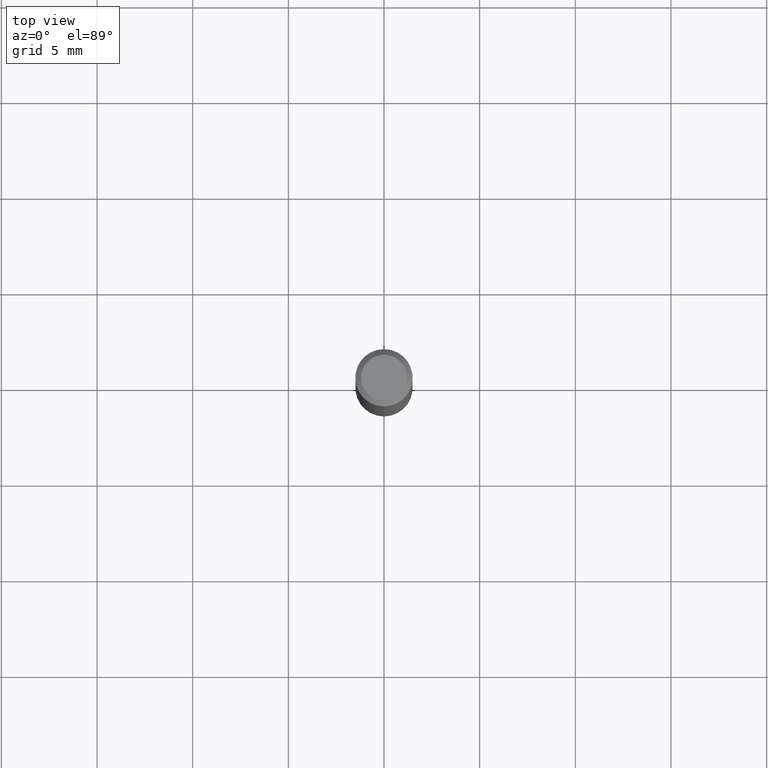
[diagram: clean part render]
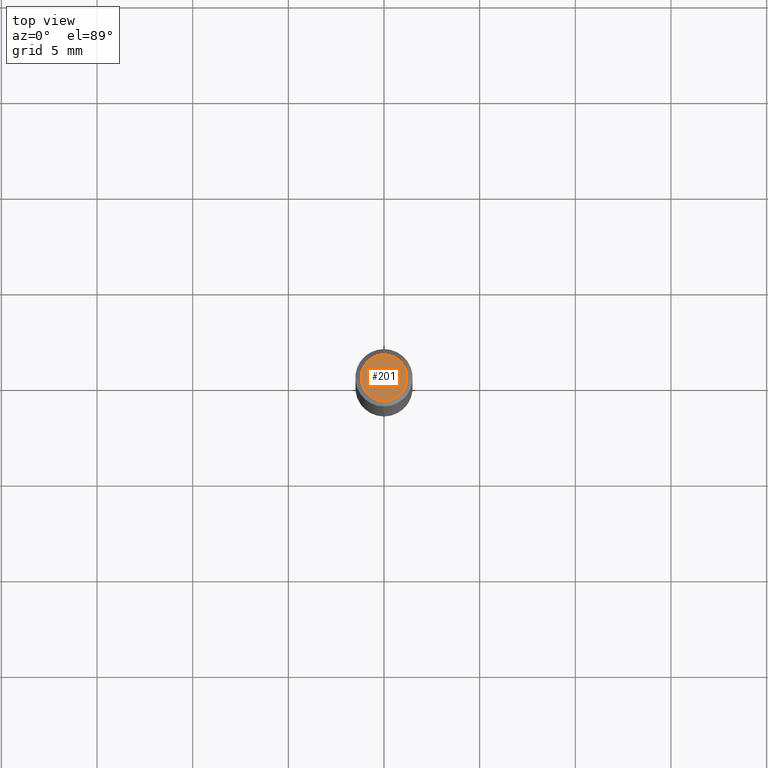
[diagram: same view with one face highlighted and labeled with its STEP entity id]
A machine part, top view. The second image highlights one B-rep face of the part: STEP entity #201.
In plain terms, the highlighted planar face has unit normal (-0, 0, 1).
Its self-contained STEP definition (entity closure, byte-faithful):
#123=VERTEX_POINT('',#263);
#129=EDGE_CURVE('',#123,#165,#269,.T.);
#165=VERTEX_POINT('',#311);
#167=EDGE_CURVE('',#165,#123,#313,.T.);
#201=ADVANCED_FACE('',(#350),#351,.T.);
#263=CARTESIAN_POINT('',(0.0,1.2,0.0));
#269=CIRCLE('',#422,1.2);
#311=CARTESIAN_POINT('',(1.46952762458685E-016,-1.2,0.0));
#313=CIRCLE('',#477,1.2);
#350=FACE_OUTER_BOUND('',#526,.T.);
#351=PLANE('',#527);
#422=AXIS2_PLACEMENT_3D('',#591,#592,#593);
#477=AXIS2_PLACEMENT_3D('',#653,#654,#655);
#526=EDGE_LOOP('',(#697,#698));
#527=AXIS2_PLACEMENT_3D('',#699,#700,#701);
#591=CARTESIAN_POINT('',(0.0,0.0,0.0));
#592=DIRECTION('',(0.0,0.0,-1.0));
#593=DIRECTION('',(0.0,1.0,0.0));
#653=CARTESIAN_POINT('',(0.0,0.0,0.0));
#654=DIRECTION('',(0.0,0.0,-1.0));
#655=DIRECTION('',(0.0,1.0,0.0));
#697=ORIENTED_EDGE('',*,*,#129,.F.);
#698=ORIENTED_EDGE('',*,*,#167,.F.);
#699=CARTESIAN_POINT('',(0.0,0.6,0.0));
#700=DIRECTION('',(-0.0,0.0,1.0));
#701=DIRECTION('',(0.0,-1.0,0.0));